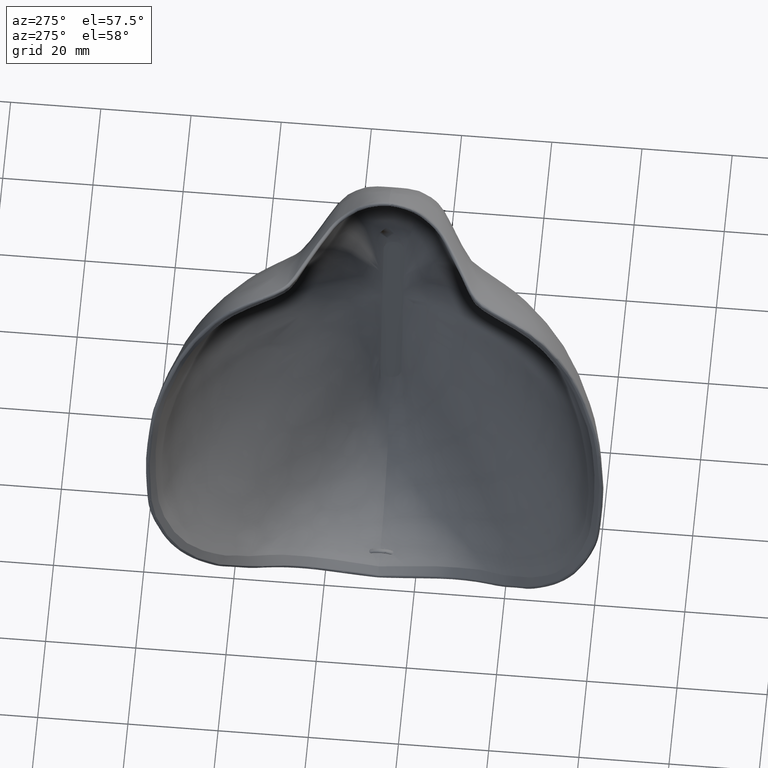
[diagram: clean part render]
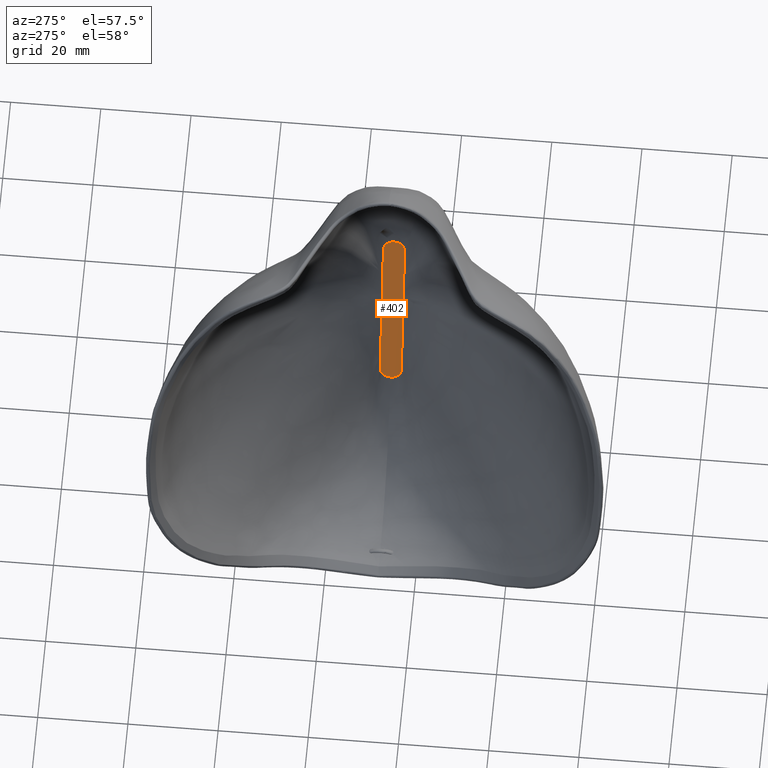
[diagram: same view with one face highlighted and labeled with its STEP entity id]
A machine part, auxiliary view. The second image highlights one B-rep face of the part: STEP entity #402.
In plain terms, the highlighted planar face has unit normal (-0.9751, -0, 0.2216).
Its self-contained STEP definition (entity closure, byte-faithful):
#15=PLANE('',#424);
#28=FACE_OUTER_BOUND('',#41,.T.);
#41=EDGE_LOOP('',(#368,#369,#370,#371,#372,#373,#374,#375));
#100=B_SPLINE_CURVE_WITH_KNOTS('',3,(#9557,#9558,#9559,#9560,#9561,#9562,
#9563,#9564,#9565,#9566,#9567,#9568,#9569,#9570,#9571,#9572,#9573,#9574,
#9575,#9576,#9577,#9578,#9579,#9580,#9581,#9582,#9583,#9584,#9585,#9586,
#9587,#9588,#9589,#9590,#9591,#9592,#9593,#9594,#9595,#9596,#9597,#9598,
#9599,#9600,#9601,#9602,#9603,#9604,#9605,#9606,#9607,#9608,#9609,#9610,
#9611,#9612,#9613,#9614,#9615,#9616,#9617,#9618,#9619,#9620,#9621,#9622,
#9623,#9624,#9625,#9626,#9627,#9628,#9629,#9630,#9631,#9632,#9633,#9634,
#9635,#9636,#9637,#9638,#9639,#9640,#9641,#9642,#9643,#9644),
 .UNSPECIFIED.,.F.,.F.,(4,1,2,2,1,2,2,1,2,2,1,2,2,1,2,2,1,2,2,1,2,2,1,2,
2,1,2,2,1,2,2,1,2,2,1,2,2,1,2,2,1,2,2,1,2,1,2,2,1,2,2,1,4),(0.458742509512089,
0.471877519518683,0.485012529525277,0.485031526688174,0.503366995752867,
0.52170246481756,0.521722756366477,0.539324397167111,0.556926037967744,
0.55694662484949,0.573969844017648,0.590993063185806,0.591013251258558,
0.607577295054026,0.624141338849494,0.624160634709426,0.640360561960478,
0.65656048921153,0.656578538271618,0.672492762370518,0.688406986469418,
0.688423534539054,0.704118835948573,0.719814137358092,0.719829006133149,
0.735364036005774,0.750899065878399,0.750912137151821,0.766339996297149,
0.781767855442476,0.78177906111766,0.797149310422934,0.812519559728209,
0.812528875974257,0.827889211364928,0.843249546755599,0.843256991395491,
0.858654750812748,0.874052510230006,0.874058142954774,0.889541782114127,
0.90502542127348,0.905029346670851,0.915107968380231,0.925186590089612,
0.930728636574602,0.936270683059591,0.936273056833329,0.952086422093972,
0.967899787354615,0.96790082658598,0.98395041329299,1.),.UNSPECIFIED.);
#101=B_SPLINE_CURVE_WITH_KNOTS('',3,(#9646,#9647,#9648,#9649,#9650,#9651,
#9652,#9653,#9654,#9655,#9656,#9657,#9658,#9659,#9660,#9661,#9662,#9663,
#9664),.UNSPECIFIED.,.F.,.F.,(4,2,2,1,2,2,1,2,2,1,4),(0.368251466088857,
0.368617844600831,0.368625631895368,0.388104295090559,0.407582958285751,
0.407594852329039,0.427071462149855,0.446548071970671,0.44656407276271,
0.452653291137399,0.45874250771956),.UNSPECIFIED.);
#102=B_SPLINE_CURVE_WITH_KNOTS('',3,(#9666,#9667,#9668,#9669,#9670,#9671,
#9672,#9673,#9674,#9675,#9676,#9677,#9678,#9679,#9680,#9681,#9682,#9683,
#9684,#9685,#9686,#9687,#9688,#9689,#9690,#9691,#9692,#9693,#9694,#9695,
#9696,#9697,#9698,#9699,#9700,#9701),.UNSPECIFIED.,.F.,.F.,(4,2,1,2,2,1,
2,2,1,1,2,2,1,2,2,1,2,1,2,2,1,4),(0.123465851294197,0.123466179491362,0.129138244392352,
0.134810309293342,0.134827162491313,0.154303346109163,0.173779529727013,
0.173792276176233,0.193270513168458,0.203009631664571,0.212748750160684,
0.212757389861152,0.232237680227754,0.251717970594355,0.251722503546072,
0.271205060388532,0.290687617230992,0.310170174073452,0.329652730915912,
0.329656411461697,0.349137128031264,0.368251466088857),.UNSPECIFIED.);
#103=B_SPLINE_CURVE_WITH_KNOTS('',3,(#9703,#9704,#9705,#9706,#9707,#9708,
#9709,#9710,#9711,#9712,#9713,#9714,#9715,#9716,#9717,#9718,#9719,#9720,
#9721,#9722,#9723,#9724,#9725,#9726,#9727,#9728,#9729,#9730,#9731,#9732,
#9733),.UNSPECIFIED.,.F.,.F.,(4,2,1,2,1,2,1,2,1,2,2,1,2,2,1,2,2,1,4),(0.,
0.000186710534281933,0.0103503103886555,0.020513910243029,0.0295361814915254,
0.0385584527400218,0.0390500968644372,0.0395417409888525,0.0490060486519082,
0.0584703563149638,0.0584763884453637,0.0684683488505194,0.0784603092556752,
0.0784689709507474,0.0900080785932276,0.101547186235708,0.101559610950687,
0.112512895221024,0.123465851294197),.UNSPECIFIED.);
#109=B_SPLINE_CURVE_WITH_KNOTS('',3,(#13273,#13274,#13275,#13276,#13277,
#13278,#13279,#13280,#13281,#13282,#13283,#13284,#13285,#13286,#13287,#13288,
#13289,#13290,#13291,#13292,#13293,#13294,#13295,#13296,#13297,#13298,#13299,
#13300,#13301,#13302,#13303,#13304,#13305,#13306,#13307),.UNSPECIFIED.,
 .F.,.F.,(4,1,2,2,1,2,2,1,2,2,1,2,2,1,2,1,2,2,1,1,1,4),(0.876534167763948,
0.887487104793919,0.898440389087723,0.898452813711747,0.909991921393148,
0.92153102907455,0.921539690707356,0.931531651139613,0.94152361157187,0.941529643659051,
0.950993951340564,0.960458259022077,0.960462093524623,0.96095182039097,
0.961441547257316,0.970462892352147,0.979484237446977,0.979486089748762,
0.989649682034101,0.99981327431944,0.99990663715972,1.),.UNSPECIFIED.);
#110=B_SPLINE_CURVE_WITH_KNOTS('',3,(#13309,#13310,#13311,#13312,#13313,
#13314,#13315,#13316,#13317,#13318,#13319,#13320,#13321,#13322,#13323,#13324,
#13325,#13326,#13327,#13328,#13329,#13330,#13331,#13332,#13333,#13334,#13335,
#13336,#13337,#13338,#13339,#13340,#13341,#13342,#13343,#13344,#13345,#13346),
 .UNSPECIFIED.,.F.,.F.,(4,1,2,2,1,2,2,1,2,2,1,1,2,2,1,2,2,1,2,2,1,2,4),
(0.631748355288963,0.650862871969536,0.670343588515583,0.670347269114423,
0.689829825959891,0.709312382805358,0.709312808939252,0.728795152717773,
0.748277496496293,0.748282029362922,0.767762319775075,0.777502464981151,
0.787242610187227,0.787251249786592,0.806729486832377,0.826207723878162,
0.826220470210261,0.845696653889679,0.865172837569097,0.865189690633931,
0.870861755567023,0.876533820500115,0.876534167763948),.UNSPECIFIED.);
#111=B_SPLINE_CURVE_WITH_KNOTS('',3,(#13348,#13349,#13350,#13351,#13352,
#13353,#13354,#13355,#13356,#13357,#13358,#13359,#13360,#13361,#13362,#13363,
#13364,#13365,#13366),.UNSPECIFIED.,.F.,.F.,(4,1,2,2,1,2,2,1,2,2,4),(0.541257490498319,
0.547346708871446,0.553435927244573,0.553451928041619,0.572928537854931,
0.592405147668243,0.592417041732554,0.611895704912233,0.631374368091913,
0.631382155423489,0.631748355288963),.UNSPECIFIED.);
#112=B_SPLINE_CURVE_WITH_KNOTS('',3,(#13367,#13368,#13369,#13370,#13371,
#13372,#13373,#13374,#13375,#13376,#13377,#13378,#13379,#13380,#13381,#13382,
#13383,#13384,#13385,#13386,#13387,#13388,#13389,#13390,#13391,#13392,#13393,
#13394,#13395,#13396,#13397,#13398,#13399,#13400,#13401,#13402,#13403,#13404,
#13405,#13406,#13407,#13408,#13409,#13410,#13411,#13412,#13413,#13414,#13415,
#13416,#13417,#13418,#13419,#13420,#13421,#13422,#13423,#13424,#13425,#13426,
#13427,#13428,#13429,#13430,#13431,#13432,#13433,#13434,#13435,#13436,#13437,
#13438,#13439,#13440,#13441,#13442,#13443,#13444,#13445,#13446,#13447,#13448,
#13449,#13450,#13451,#13452,#13453,#13454),.UNSPECIFIED.,.F.,.F.,(4,1,2,
2,1,2,2,1,2,1,2,2,1,2,2,1,2,2,1,2,2,1,2,2,1,2,2,1,2,2,1,2,2,1,2,2,1,2,2,
1,2,2,1,2,2,1,2,2,1,2,2,1,4),(0.,0.0160495867075203,0.0320991734150406,
0.0321002126458041,0.0479135779075864,0.0637269431693687,0.0637293169409132,
0.0692713634263699,0.0748134099118266,0.084892031622913,0.0949706533339994,
0.0949745787268652,0.110458217889713,0.125941857052561,0.125947489770008,
0.141345249192275,0.156743008614542,0.156750453243976,0.172110788641278,
0.187471124038579,0.187480440270873,0.202850689584428,0.218220938897982,
0.218232144556112,0.233660003711321,0.24908786286653,0.249100934119747,
0.264635964003725,0.280170993887703,0.280185862639719,0.295881164061843,
0.311576465483966,0.31159301352823,0.327507237640659,0.343421461753088,
0.343439510786205,0.35963943805125,0.375839365316295,0.375858661148673,
0.392422704957964,0.408986748767256,0.409006936813266,0.426030155994207,
0.443053375175148,0.443073962032881,0.460675602844049,0.478277243655217,
0.478297535185516,0.496633004256786,0.514968473328055,0.514987470481529,
0.528122480489924,0.541257479669037),.UNSPECIFIED.);
#163=VERTEX_POINT('',#9545);
#164=VERTEX_POINT('',#9556);
#165=VERTEX_POINT('',#9645);
#166=VERTEX_POINT('',#9665);
#167=VERTEX_POINT('',#9702);
#171=VERTEX_POINT('',#13272);
#172=VERTEX_POINT('',#13308);
#173=VERTEX_POINT('',#13347);
#231=EDGE_CURVE('',#164,#163,#100,.T.);
#232=EDGE_CURVE('',#165,#164,#101,.T.);
#233=EDGE_CURVE('',#166,#165,#102,.T.);
#234=EDGE_CURVE('',#167,#166,#103,.T.);
#240=EDGE_CURVE('',#171,#167,#109,.T.);
#241=EDGE_CURVE('',#172,#171,#110,.T.);
#242=EDGE_CURVE('',#173,#172,#111,.T.);
#243=EDGE_CURVE('',#163,#173,#112,.T.);
#368=ORIENTED_EDGE('',*,*,#243,.T.);
#369=ORIENTED_EDGE('',*,*,#242,.T.);
#370=ORIENTED_EDGE('',*,*,#241,.T.);
#371=ORIENTED_EDGE('',*,*,#240,.T.);
#372=ORIENTED_EDGE('',*,*,#234,.T.);
#373=ORIENTED_EDGE('',*,*,#233,.T.);
#374=ORIENTED_EDGE('',*,*,#232,.T.);
#375=ORIENTED_EDGE('',*,*,#231,.T.);
#402=ADVANCED_FACE('',(#28),#15,.T.);
#424=AXIS2_PLACEMENT_3D('',#13455,#428,#429);
#428=DIRECTION('center_axis',(-0.975142567848066,-1.83267958722439E-15,
0.221578366206359));
#429=DIRECTION('ref_axis',(0.221578366206359,-1.15045214581121E-18,0.975142567848066));
#9545=CARTESIAN_POINT('',(52.9365773669472,-71.8607379792957,-153.933333137427));
#9556=CARTESIAN_POINT('',(58.5159556220366,-69.5278479792958,-129.379089274122));
#9557=CARTESIAN_POINT('Ctrl Pts',(58.5159556388925,-69.5278479970514,-129.379089313094));
#9558=CARTESIAN_POINT('Ctrl Pts',(58.4974091335272,-69.5278479931046,-129.460710466073));
#9559=CARTESIAN_POINT('Ctrl Pts',(58.4570526273754,-69.527847986563,-129.638315072237));
#9560=CARTESIAN_POINT('Ctrl Pts',(58.4104448272529,-69.527847979986,-129.843430952128));
#9561=CARTESIAN_POINT('Ctrl Pts',(58.3856111641603,-69.5278479776363,-129.952721219986));
#9562=CARTESIAN_POINT('Ctrl Pts',(58.3855752959903,-69.5278479776402,-129.952879071969));
#9563=CARTESIAN_POINT('Ctrl Pts',(58.3509175647374,-69.5278479753437,-130.105404007987));
#9564=CARTESIAN_POINT('Ctrl Pts',(58.2758522033821,-69.5278479702919,-130.435758563445));
#9565=CARTESIAN_POINT('Ctrl Pts',(58.1898934870431,-69.5278479625254,-130.8140535901));
#9566=CARTESIAN_POINT('Ctrl Pts',(58.1443279027814,-69.5278479597152,-131.014582812147));
#9567=CARTESIAN_POINT('Ctrl Pts',(58.1442775287767,-69.52784795972,-131.014804502753));
#9568=CARTESIAN_POINT('Ctrl Pts',(58.1005281748602,-69.527847956237,-131.207340686973));
#9569=CARTESIAN_POINT('Ctrl Pts',(58.0084567310326,-69.5278479489784,-131.612537173108));
#9570=CARTESIAN_POINT('Ctrl Pts',(57.907701743414,-69.5278479332059,-132.055948957031));
#9571=CARTESIAN_POINT('Ctrl Pts',(57.8552579618254,-69.527847928323,-132.286748375524));
#9572=CARTESIAN_POINT('Ctrl Pts',(57.8551966924936,-69.5278479283283,-132.287018015293));
#9573=CARTESIAN_POINT('Ctrl Pts',(57.8044697559772,-69.527847926523,-132.510261800903));
#9574=CARTESIAN_POINT('Ctrl Pts',(57.6993879698625,-69.5278479261599,-132.97271544574));
#9575=CARTESIAN_POINT('Ctrl Pts',(57.5874054157021,-69.5278479116568,-133.465538554859));
#9576=CARTESIAN_POINT('Ctrl Pts',(57.529770723899,-69.5278479078854,-133.719182619047));
#9577=CARTESIAN_POINT('Ctrl Pts',(57.5297024528655,-69.5278479078884,-133.719483072537));
#9578=CARTESIAN_POINT('Ctrl Pts',(57.4736168913449,-69.527847907908,-133.966309603164));
#9579=CARTESIAN_POINT('Ctrl Pts',(57.3586000158297,-69.5278479131267,-134.472486544438));
#9580=CARTESIAN_POINT('Ctrl Pts',(57.2381714172655,-69.5278479019145,-135.002479815529));
#9581=CARTESIAN_POINT('Ctrl Pts',(57.1766708560576,-69.5278478994196,-135.273137166033));
#9582=CARTESIAN_POINT('Ctrl Pts',(57.1765992942638,-69.527847899422,-135.273452101795));
#9583=CARTESIAN_POINT('Ctrl Pts',(57.1164463176899,-69.5278478989398,-135.538178890974));
#9584=CARTESIAN_POINT('Ctrl Pts',(56.9939600299515,-69.5278479025922,-136.077227914529));
#9585=CARTESIAN_POINT('Ctrl Pts',(56.8673440294344,-69.527847888465,-136.634451282349));
#9586=CARTESIAN_POINT('Ctrl Pts',(56.8030613724107,-69.5278478847388,-136.917352338375));
#9587=CARTESIAN_POINT('Ctrl Pts',(56.8029898308276,-69.5278478847444,-136.917667185196));
#9588=CARTESIAN_POINT('Ctrl Pts',(56.7398376278277,-69.5278478810193,-137.195593240199));
#9589=CARTESIAN_POINT('Ctrl Pts',(56.6119335004174,-69.5278478767922,-137.758485573429));
#9590=CARTESIAN_POINT('Ctrl Pts',(56.4810340850687,-69.5278478496357,-138.334559764855));
#9591=CARTESIAN_POINT('Ctrl Pts',(56.4148894390301,-69.5278478418076,-138.625655228273));
#9592=CARTESIAN_POINT('Ctrl Pts',(56.414820730685,-69.5278478418163,-138.625957606309));
#9593=CARTESIAN_POINT('Ctrl Pts',(56.3495837716951,-69.5278478372975,-138.913058467293));
#9594=CARTESIAN_POINT('Ctrl Pts',(56.2180292811725,-69.5278478341865,-139.492015713662));
#9595=CARTESIAN_POINT('Ctrl Pts',(56.0845091714562,-69.5278477992433,-140.079623359173));
#9596=CARTESIAN_POINT('Ctrl Pts',(56.0173117136677,-69.5278477894777,-140.375352159346));
#9597=CARTESIAN_POINT('Ctrl Pts',(56.0172481147811,-69.5278477894872,-140.375632051157));
#9598=CARTESIAN_POINT('Ctrl Pts',(55.9507354964797,-69.5278477845241,-140.668346999776));
#9599=CARTESIAN_POINT('Ctrl Pts',(55.8171052642606,-69.5278477827653,-141.25643948097));
#9600=CARTESIAN_POINT('Ctrl Pts',(55.6824667461458,-69.5278477400407,-141.848969300715));
#9601=CARTESIAN_POINT('Ctrl Pts',(55.6149526836229,-69.5278477266289,-142.146091501924));
#9602=CARTESIAN_POINT('Ctrl Pts',(55.6148959244937,-69.5278477266489,-142.146341292663));
#9603=CARTESIAN_POINT('Ctrl Pts',(55.5478469980021,-69.5278477049597,-142.441416492295));
#9604=CARTESIAN_POINT('Ctrl Pts',(55.4135905718922,-69.5278476604196,-143.032264788389));
#9605=CARTESIAN_POINT('Ctrl Pts',(55.2792367174025,-69.5278475523742,-143.623541950098));
#9606=CARTESIAN_POINT('Ctrl Pts',(55.2120983780568,-69.5278475147198,-143.919010667293));
#9607=CARTESIAN_POINT('Ctrl Pts',(55.212049649054,-69.5278475147671,-143.919225118289));
#9608=CARTESIAN_POINT('Ctrl Pts',(55.1451619617169,-69.5278474562576,-144.213590753768));
#9609=CARTESIAN_POINT('Ctrl Pts',(55.011657557452,-69.5278473268407,-144.801129532663));
#9610=CARTESIAN_POINT('Ctrl Pts',(54.8789419773124,-69.5278470675704,-145.385197020954));
#9611=CARTESIAN_POINT('Ctrl Pts',(54.8128517740054,-69.5278469778225,-145.676053078071));
#9612=CARTESIAN_POINT('Ctrl Pts',(54.8128117396016,-69.5278469779075,-145.676229264982));
#9613=CARTESIAN_POINT('Ctrl Pts',(54.74676453313,-69.5278468601907,-145.966896220344));
#9614=CARTESIAN_POINT('Ctrl Pts',(54.6153648139066,-69.5278466068423,-146.545172953515));
#9615=CARTESIAN_POINT('Ctrl Pts',(54.4856353263336,-69.5278460803104,-147.116099739061));
#9616=CARTESIAN_POINT('Ctrl Pts',(54.4212671248032,-69.5278458974841,-147.39937772558));
#9617=CARTESIAN_POINT('Ctrl Pts',(54.4212359428216,-69.5278458976266,-147.399514953761));
#9618=CARTESIAN_POINT('Ctrl Pts',(54.3567115427261,-69.5278456445018,-147.683480576695));
#9619=CARTESIAN_POINT('Ctrl Pts',(54.2287859079928,-69.5278450923615,-148.246469061721));
#9620=CARTESIAN_POINT('Ctrl Pts',(54.1034262073311,-69.527843968213,-148.798166508749));
#9621=CARTESIAN_POINT('Ctrl Pts',(54.0414760762114,-69.5278435705146,-149.070803369698));
#9622=CARTESIAN_POINT('Ctrl Pts',(54.0414534221688,-69.5278435707613,-149.070903067158));
#9623=CARTESIAN_POINT('Ctrl Pts',(53.9791584988548,-69.5278429668426,-149.345057547079));
#9624=CARTESIAN_POINT('Ctrl Pts',(53.8561358087622,-69.5278416252866,-149.886469708484));
#9625=CARTESIAN_POINT('Ctrl Pts',(53.7366089479932,-69.5278389873097,-150.412500166491));
#9626=CARTESIAN_POINT('Ctrl Pts',(53.6778171380947,-69.5278380892288,-150.671238333709));
#9627=CARTESIAN_POINT('Ctrl Pts',(53.6778022369148,-69.5278380895605,-150.671303911763));
#9628=CARTESIAN_POINT('Ctrl Pts',(53.6395284693501,-69.5278374142086,-150.839743179941));
#9629=CARTESIAN_POINT('Ctrl Pts',(53.5638469073048,-69.527835632769,-151.172810503878));
#9630=CARTESIAN_POINT('Ctrl Pts',(53.4899625132325,-69.527833355332,-151.497970273378));
#9631=CARTESIAN_POINT('Ctrl Pts',(53.4334510631217,-69.5278308859331,-151.7466732795));
#9632=CARTESIAN_POINT('Ctrl Pts',(53.3933515632236,-69.5383736394484,-151.923147272431));
#9633=CARTESIAN_POINT('Ctrl Pts',(53.353794508921,-69.5698509674992,-152.097235063558));
#9634=CARTESIAN_POINT('Ctrl Pts',(53.3342769330653,-69.5907280922375,-152.183130305806));
#9635=CARTESIAN_POINT('Ctrl Pts',(53.3342685767555,-69.5907370328638,-152.183167080594));
#9636=CARTESIAN_POINT('Ctrl Pts',(53.2785947400565,-69.6502945169038,-152.428184521059));
#9637=CARTESIAN_POINT('Ctrl Pts',(53.1717098084537,-69.8537058804545,-152.898579244888));
#9638=CARTESIAN_POINT('Ctrl Pts',(53.0853124258043,-70.203025712548,-153.278819773744));
#9639=CARTESIAN_POINT('Ctrl Pts',(53.0496080972545,-70.404773218882,-153.435954141947));
#9640=CARTESIAN_POINT('Ctrl Pts',(53.0496057507946,-70.4047864770872,-153.43596446867));
#9641=CARTESIAN_POINT('Ctrl Pts',(53.0133655972171,-70.6095411562336,-153.59544528182));
#9642=CARTESIAN_POINT('Ctrl Pts',(52.9563614576815,-71.0746966326036,-153.846290061088));
#9643=CARTESIAN_POINT('Ctrl Pts',(52.9365773669472,-71.5986921286141,-153.933333137427));
#9644=CARTESIAN_POINT('Ctrl Pts',(52.9365773669472,-71.8607379792957,-153.933333137427));
#9645=CARTESIAN_POINT('',(58.8992729448451,-69.5278479792958,-127.692150946777));
#9646=CARTESIAN_POINT('Ctrl Pts',(58.8992729449211,-69.5278479525763,-127.692150946794));
#9647=CARTESIAN_POINT('Ctrl Pts',(58.8987556227923,-69.5278479534048,-127.694427629994));
#9648=CARTESIAN_POINT('Ctrl Pts',(58.8982383006604,-69.5278479542297,-127.696704313187));
#9649=CARTESIAN_POINT('Ctrl Pts',(58.8977099829575,-69.5278479550683,-127.699029386773));
#9650=CARTESIAN_POINT('Ctrl Pts',(58.8976989873647,-69.5278479550533,-127.699077777123));
#9651=CARTESIAN_POINT('Ctrl Pts',(58.8701843233863,-69.5278479668818,-127.82016690438));
#9652=CARTESIAN_POINT('Ctrl Pts',(58.8151769812645,-69.5278479863182,-128.062248363998));
#9653=CARTESIAN_POINT('Ctrl Pts',(58.7601696477279,-69.5278480118786,-128.304329847457));
#9654=CARTESIAN_POINT('Ctrl Pts',(58.7326491825832,-69.5278480197701,-128.425444490008));
#9655=CARTESIAN_POINT('Ctrl Pts',(58.7326323883127,-69.5278480197678,-128.425518399781));
#9656=CARTESIAN_POINT('Ctrl Pts',(58.7051148143106,-69.527848017477,-128.546620265305));
#9657=CARTESIAN_POINT('Ctrl Pts',(58.6501132482974,-69.5278480059124,-128.788676161509));
#9658=CARTESIAN_POINT('Ctrl Pts',(58.5951116919653,-69.5278480044083,-129.030732080577));
#9659=CARTESIAN_POINT('Ctrl Pts',(58.5675883201605,-69.5278480027853,-129.151859467897));
#9660=CARTESIAN_POINT('Ctrl Pts',(58.5675657272053,-69.5278480027874,-129.151958897078));
#9661=CARTESIAN_POINT('Ctrl Pts',(58.5589452185781,-69.5278480020999,-129.189896824556));
#9662=CARTESIAN_POINT('Ctrl Pts',(58.5417493888775,-69.5278479996927,-129.265573808014));
#9663=CARTESIAN_POINT('Ctrl Pts',(58.5245535606063,-69.5278479988811,-129.341250794749));
#9664=CARTESIAN_POINT('Ctrl Pts',(58.5159556464856,-69.5278479970514,-129.379089279678));
#9665=CARTESIAN_POINT('',(59.9361760303931,-69.5278479792958,-123.128851944431));
#9666=CARTESIAN_POINT('Ctrl Pts',(59.9361760708753,-69.5278380877517,-123.128851953584));
#9667=CARTESIAN_POINT('Ctrl Pts',(59.9361756074398,-69.527838087783,-123.128853993112));
#9668=CARTESIAN_POINT('Ctrl Pts',(59.9361751440186,-69.5278380878143,-123.128856032577));
#9669=CARTESIAN_POINT('Ctrl Pts',(59.9281658533949,-69.5278386291188,-123.164104029619));
#9670=CARTESIAN_POINT('Ctrl Pts',(59.9121481004512,-69.5278389633466,-123.234596420526));
#9671=CARTESIAN_POINT('Ctrl Pts',(59.8961303513488,-69.5278393347725,-123.305088784259));
#9672=CARTESIAN_POINT('Ctrl Pts',(59.8880976735163,-69.5278394691984,-123.340439724817));
#9673=CARTESIAN_POINT('Ctrl Pts',(59.888073876875,-69.5278394684359,-123.340544451358));
#9674=CARTESIAN_POINT('Ctrl Pts',(59.8605500096459,-69.5278403156001,-123.461673930081));
#9675=CARTESIAN_POINT('Ctrl Pts',(59.8055500065996,-69.5278430589244,-123.70372276948));
#9676=CARTESIAN_POINT('Ctrl Pts',(59.7505497547288,-69.5278440988358,-123.945772609387));
#9677=CARTESIAN_POINT('Ctrl Pts',(59.7230316417096,-69.5278446368425,-124.066876752528));
#9678=CARTESIAN_POINT('Ctrl Pts',(59.7230136438034,-69.5278446364511,-124.066955959426));
#9679=CARTESIAN_POINT('Ctrl Pts',(59.6954926203498,-69.5278449841256,-124.18807302963));
#9680=CARTESIAN_POINT('Ctrl Pts',(59.6542381653564,-69.527846061729,-124.369629504835));
#9681=CARTESIAN_POINT('Ctrl Pts',(59.5992320357908,-69.5278462407267,-124.611705525545));
#9682=CARTESIAN_POINT('Ctrl Pts',(59.5717290088214,-69.527846622685,-124.732743347116));
#9683=CARTESIAN_POINT('Ctrl Pts',(59.5579652757736,-69.5278466599321,-124.793316042631));
#9684=CARTESIAN_POINT('Ctrl Pts',(59.5579530766025,-69.5278466598812,-124.793369729919));
#9685=CARTESIAN_POINT('Ctrl Pts',(59.5304349004429,-69.5278467556439,-124.914474136957));
#9686=CARTESIAN_POINT('Ctrl Pts',(59.4754229655131,-69.5278470881291,-125.156575488492));
#9687=CARTESIAN_POINT('Ctrl Pts',(59.4204109345174,-69.5278471112881,-125.398676849653));
#9688=CARTESIAN_POINT('Ctrl Pts',(59.3928985418136,-69.5278471518539,-125.519755745445));
#9689=CARTESIAN_POINT('Ctrl Pts',(59.3928921413311,-69.5278471518377,-125.519783913296));
#9690=CARTESIAN_POINT('Ctrl Pts',(59.3653765875836,-69.5278472144649,-125.640877001529));
#9691=CARTESIAN_POINT('Ctrl Pts',(59.3103583294806,-69.5278474367902,-125.883006900867));
#9692=CARTESIAN_POINT('Ctrl Pts',(59.2553399757997,-69.5278474548036,-126.125136697816));
#9693=CARTESIAN_POINT('Ctrl Pts',(59.200321646559,-69.5278475506914,-126.367266492342));
#9694=CARTESIAN_POINT('Ctrl Pts',(59.1453033206045,-69.5278476174433,-126.609396330719));
#9695=CARTESIAN_POINT('Ctrl Pts',(59.0902849186875,-69.5278475797501,-126.851526022985));
#9696=CARTESIAN_POINT('Ctrl Pts',(59.0627705395732,-69.5278475801686,-126.972613783328));
#9697=CARTESIAN_POINT('Ctrl Pts',(59.0627653426755,-69.5278475801617,-126.972636654291));
#9698=CARTESIAN_POINT('Ctrl Pts',(59.0352536097305,-69.5278476334164,-127.093713085641));
#9699=CARTESIAN_POINT('Ctrl Pts',(58.980757908344,-69.5278478018689,-127.333543621399));
#9700=CARTESIAN_POINT('Ctrl Pts',(58.9262621643516,-69.5278479093513,-127.573374078304));
#9701=CARTESIAN_POINT('Ctrl Pts',(58.8992729449211,-69.5278479525763,-127.692150946794));
#9702=CARTESIAN_POINT('',(62.241100552252,-71.8607379792957,-112.985126925499));
#9703=CARTESIAN_POINT('Ctrl Pts',(62.241100552252,-71.8607379792957,-112.985126925499));
#9704=CARTESIAN_POINT('Ctrl Pts',(62.241100552252,-71.854823151472,-112.985126925499));
#9705=CARTESIAN_POINT('Ctrl Pts',(62.2410955076991,-71.8489082363107,-112.985149125807));
#9706=CARTESIAN_POINT('Ctrl Pts',(62.2405479757012,-71.5210363868008,-112.98755877556));
#9707=CARTESIAN_POINT('Ctrl Pts',(62.2094266040487,-70.8783848447403,-113.124520650265));
#9708=CARTESIAN_POINT('Ctrl Pts',(62.1237768401928,-70.3461099360954,-113.501456105247));
#9709=CARTESIAN_POINT('Ctrl Pts',(62.0238853386235,-69.9385219246193,-113.941067950007));
#9710=CARTESIAN_POINT('Ctrl Pts',(61.914134737461,-69.6342083443217,-114.424068582954));
#9711=CARTESIAN_POINT('Ctrl Pts',(61.7875025024638,-69.5277610189325,-114.981363504724));
#9712=CARTESIAN_POINT('Ctrl Pts',(61.7207216558133,-69.527776642367,-115.275258856031));
#9713=CARTESIAN_POINT('Ctrl Pts',(61.7137876073522,-69.5277763312626,-115.30577485783));
#9714=CARTESIAN_POINT('Ctrl Pts',(61.7067908392356,-69.5277764603741,-115.336566881767));
#9715=CARTESIAN_POINT('Ctrl Pts',(61.6356359539245,-69.5277806474709,-115.649711918844));
#9716=CARTESIAN_POINT('Ctrl Pts',(61.4889341428185,-69.5277920586006,-116.29533089583));
#9717=CARTESIAN_POINT('Ctrl Pts',(61.3273042782811,-69.5277993701319,-117.006646670804));
#9718=CARTESIAN_POINT('Ctrl Pts',(61.2446828941741,-69.5278024182513,-117.370254535318));
#9719=CARTESIAN_POINT('Ctrl Pts',(61.2446302671867,-69.5278024158624,-117.370486141019));
#9720=CARTESIAN_POINT('Ctrl Pts',(61.1574030747943,-69.5278050583093,-117.754363629994));
#9721=CARTESIAN_POINT('Ctrl Pts',(60.9791475941051,-69.5278126090371,-118.538846791249));
#9722=CARTESIAN_POINT('Ctrl Pts',(60.8023895181171,-69.5278172655903,-119.316740087444));
#9723=CARTESIAN_POINT('Ctrl Pts',(60.7166383906543,-69.5278192433851,-119.694121577036));
#9724=CARTESIAN_POINT('Ctrl Pts',(60.7165641217572,-69.5278192412277,-119.694448426477));
#9725=CARTESIAN_POINT('Ctrl Pts',(60.6175522297707,-69.5278212160243,-120.130189104611));
#9726=CARTESIAN_POINT('Ctrl Pts',(60.4268902808413,-69.5278269186303,-120.969271789266));
#9727=CARTESIAN_POINT('Ctrl Pts',(60.2649947187926,-69.5278303064379,-121.681756758523));
#9728=CARTESIAN_POINT('Ctrl Pts',(60.1947481636217,-69.5278317453066,-121.99090428819));
#9729=CARTESIAN_POINT('Ctrl Pts',(60.1946726191507,-69.5278317435069,-121.991236751322));
#9730=CARTESIAN_POINT('Ctrl Pts',(60.1280105429512,-69.5278327307384,-122.284609340766));
#9731=CARTESIAN_POINT('Ctrl Pts',(60.0142669359186,-69.5278356299754,-122.785182592618));
#9732=CARTESIAN_POINT('Ctrl Pts',(59.9516423464634,-69.5278370425546,-123.06078659526));
#9733=CARTESIAN_POINT('Ctrl Pts',(59.9361760708753,-69.5278380877517,-123.128851953584));
#13272=CARTESIAN_POINT('',(59.9361760303931,-74.1936279792958,-123.128851944431));
#13273=CARTESIAN_POINT('Ctrl Pts',(59.9361761423711,-74.1936374179239,-123.128851969797));
#13274=CARTESIAN_POINT('Ctrl Pts',(59.9516424509313,-74.1936384491777,-123.060786550353));
#13275=CARTESIAN_POINT('Ctrl Pts',(60.0142670384112,-74.1936398440246,-122.78518267773));
#13276=CARTESIAN_POINT('Ctrl Pts',(60.1280105534169,-74.193642695243,-122.284610028019));
#13277=CARTESIAN_POINT('Ctrl Pts',(60.1946726318766,-74.1936436648096,-121.991237497944));
#13278=CARTESIAN_POINT('Ctrl Pts',(60.1947481757901,-74.1936436630542,-121.990905037139));
#13279=CARTESIAN_POINT('Ctrl Pts',(60.2649947340059,-74.193645059581,-121.681757594756));
#13280=CARTESIAN_POINT('Ctrl Pts',(60.4268903064048,-74.1936483358279,-120.969272823712));
#13281=CARTESIAN_POINT('Ctrl Pts',(60.6175522638442,-74.1936538893202,-120.130190476777));
#13282=CARTESIAN_POINT('Ctrl Pts',(60.7165641580682,-74.193655809757,-119.694449916453));
#13283=CARTESIAN_POINT('Ctrl Pts',(60.716638426432,-74.1936558076626,-119.694123069238));
#13284=CARTESIAN_POINT('Ctrl Pts',(60.8023895506404,-74.1936577250362,-119.316741691109));
#13285=CARTESIAN_POINT('Ctrl Pts',(60.9791476191457,-74.1936622265436,-118.538848644723));
#13286=CARTESIAN_POINT('Ctrl Pts',(61.1574030873675,-74.1936695777683,-117.754365915722));
#13287=CARTESIAN_POINT('Ctrl Pts',(61.2446302762652,-74.1936721485171,-117.370488581616));
#13288=CARTESIAN_POINT('Ctrl Pts',(61.2446829028743,-74.1936721461902,-117.370256977423));
#13289=CARTESIAN_POINT('Ctrl Pts',(61.3273042927568,-74.1936751181083,-117.006649319312));
#13290=CARTESIAN_POINT('Ctrl Pts',(61.4889341973512,-74.193682124197,-116.29533395229));
#13291=CARTESIAN_POINT('Ctrl Pts',(61.6356359909938,-74.1936934692865,-115.64971589559));
#13292=CARTESIAN_POINT('Ctrl Pts',(61.7033045876394,-74.1936969702181,-115.351913913193));
#13293=CARTESIAN_POINT('Ctrl Pts',(61.7033319921604,-74.1936969691537,-115.351793308768));
#13294=CARTESIAN_POINT('Ctrl Pts',(61.7068592451948,-74.1936969895514,-115.33627024912));
#13295=CARTESIAN_POINT('Ctrl Pts',(61.7138283489263,-74.1936972314653,-115.305599979821));
#13296=CARTESIAN_POINT('Ctrl Pts',(61.7207352416683,-74.1936968539696,-115.275203480127));
#13297=CARTESIAN_POINT('Ctrl Pts',(61.7874960050305,-74.1937134796059,-114.981396964184));
#13298=CARTESIAN_POINT('Ctrl Pts',(61.9141148933159,-74.0872859391749,-114.42416171928));
#13299=CARTESIAN_POINT('Ctrl Pts',(62.0238574950025,-73.7830425521188,-113.941197735213));
#13300=CARTESIAN_POINT('Ctrl Pts',(62.070839668667,-73.5913528155535,-113.73443457258));
#13301=CARTESIAN_POINT('Ctrl Pts',(62.0708493138285,-73.5913134607458,-113.734392125341));
#13302=CARTESIAN_POINT('Ctrl Pts',(62.1237780662921,-73.3753584738663,-113.501457353565));
#13303=CARTESIAN_POINT('Ctrl Pts',(62.2094261126741,-72.8430876587633,-113.12452640944));
#13304=CARTESIAN_POINT('Ctrl Pts',(62.2406880492695,-72.1974910011722,-112.98694287418));
#13305=CARTESIAN_POINT('Ctrl Pts',(62.2410980045722,-71.8696109944328,-112.985138130686));
#13306=CARTESIAN_POINT('Ctrl Pts',(62.241100552252,-71.8636956331179,-112.985126925499));
#13307=CARTESIAN_POINT('Ctrl Pts',(62.241100552252,-71.8607379792957,-112.985126925499));
#13308=CARTESIAN_POINT('',(58.8992729447948,-74.1936279792958,-127.692150946998));
#13309=CARTESIAN_POINT('Ctrl Pts',(58.8992708532566,-74.193626327706,-127.692151428521));
#13310=CARTESIAN_POINT('Ctrl Pts',(58.9262601127706,-74.1936260242953,-127.573372998008));
#13311=CARTESIAN_POINT('Ctrl Pts',(58.9807556793169,-74.1936253888219,-127.333540515999));
#13312=CARTESIAN_POINT('Ctrl Pts',(59.0352505624869,-74.1936239100708,-127.093706588939));
#13313=CARTESIAN_POINT('Ctrl Pts',(59.0627619045459,-74.1936233782869,-126.97262932402));
#13314=CARTESIAN_POINT('Ctrl Pts',(59.0627671016594,-74.1936233784661,-126.972606453027));
#13315=CARTESIAN_POINT('Ctrl Pts',(59.0902807681208,-74.1936225073726,-126.851517171139));
#13316=CARTESIAN_POINT('Ctrl Pts',(59.1452977463842,-74.1936208143798,-126.609384433102));
#13317=CARTESIAN_POINT('Ctrl Pts',(59.2003125558677,-74.193616439022,-126.367247101619));
#13318=CARTESIAN_POINT('Ctrl Pts',(59.2278214013616,-74.1936152939249,-126.246177569063));
#13319=CARTESIAN_POINT('Ctrl Pts',(59.2278220030579,-74.1936152939236,-126.246174921059));
#13320=CARTESIAN_POINT('Ctrl Pts',(59.2553324407327,-74.1936165311881,-126.125110756919));
#13321=CARTESIAN_POINT('Ctrl Pts',(59.3103537979369,-74.1936211167275,-125.882991316674));
#13322=CARTESIAN_POINT('Ctrl Pts',(59.3653730302673,-74.1936231334609,-125.640867424161));
#13323=CARTESIAN_POINT('Ctrl Pts',(59.3928890391984,-74.1936241079956,-125.519777274546));
#13324=CARTESIAN_POINT('Ctrl Pts',(59.3928954393852,-74.1936241077558,-125.51974910685));
#13325=CARTESIAN_POINT('Ctrl Pts',(59.4204081928923,-74.1936246577611,-125.398670977394));
#13326=CARTESIAN_POINT('Ctrl Pts',(59.4616682705717,-74.1936263350742,-125.217097343632));
#13327=CARTESIAN_POINT('Ctrl Pts',(59.5166804069933,-74.1936267209754,-124.974996203615));
#13328=CARTESIAN_POINT('Ctrl Pts',(59.544186777266,-74.1936274561515,-124.853946416262));
#13329=CARTESIAN_POINT('Ctrl Pts',(59.5579520021039,-74.1936275452418,-124.793367429501));
#13330=CARTESIAN_POINT('Ctrl Pts',(59.5579642010773,-74.19362754508,-124.793313742699));
#13331=CARTESIAN_POINT('Ctrl Pts',(59.585479577053,-74.1936279073331,-124.672222397317));
#13332=CARTESIAN_POINT('Ctrl Pts',(59.6404860769835,-74.1936288436572,-124.430147415796));
#13333=CARTESIAN_POINT('Ctrl Pts',(59.6954922639996,-74.1936300517955,-124.188072326369));
#13334=CARTESIAN_POINT('Ctrl Pts',(59.723013373981,-74.1936305083407,-124.06695547157));
#13335=CARTESIAN_POINT('Ctrl Pts',(59.7230313716643,-74.1936305078699,-124.066876265252));
#13336=CARTESIAN_POINT('Ctrl Pts',(59.7505495281825,-74.193631117041,-123.945772240654));
#13337=CARTESIAN_POINT('Ctrl Pts',(59.805549890152,-74.1936323663929,-123.703722677283));
#13338=CARTESIAN_POINT('Ctrl Pts',(59.8605499639795,-74.193635169625,-123.461674114279));
#13339=CARTESIAN_POINT('Ctrl Pts',(59.8880738590867,-74.1936360502758,-123.340544734703));
#13340=CARTESIAN_POINT('Ctrl Pts',(59.8880976555202,-74.1936360494928,-123.340440008911));
#13341=CARTESIAN_POINT('Ctrl Pts',(59.8961303349042,-74.1936361843749,-123.305089079166));
#13342=CARTESIAN_POINT('Ctrl Pts',(59.9121480871476,-74.1936365543293,-123.234596739873));
#13343=CARTESIAN_POINT('Ctrl Pts',(59.9281658416432,-74.1936368837719,-123.164104368694));
#13344=CARTESIAN_POINT('Ctrl Pts',(59.9361751616657,-74.1936374178585,-123.128856285767));
#13345=CARTESIAN_POINT('Ctrl Pts',(59.9361756520104,-74.1936374178912,-123.128854127817));
#13346=CARTESIAN_POINT('Ctrl Pts',(59.9361761423711,-74.1936374179239,-123.128851969797));
#13347=CARTESIAN_POINT('',(58.5159556220367,-74.1936279792958,-129.379089274122));
#13348=CARTESIAN_POINT('Ctrl Pts',(58.5159555093098,-74.1936278405607,-129.379089036204));
#13349=CARTESIAN_POINT('Ctrl Pts',(58.5245534192556,-74.1936278342797,-129.341250525724));
#13350=CARTESIAN_POINT('Ctrl Pts',(58.5417492470991,-74.1936278315156,-129.265573521508));
#13351=CARTESIAN_POINT('Ctrl Pts',(58.5589450691211,-74.1936278215807,-129.189896505015));
#13352=CARTESIAN_POINT('Ctrl Pts',(58.5675655740127,-74.1936278177457,-129.1519585695));
#13353=CARTESIAN_POINT('Ctrl Pts',(58.5675881669994,-74.1936278177731,-129.15185914034));
#13354=CARTESIAN_POINT('Ctrl Pts',(58.5951115065628,-74.1936277804455,-129.030731684411));
#13355=CARTESIAN_POINT('Ctrl Pts',(58.6501129928528,-74.19362769732,-128.788675616545));
#13356=CARTESIAN_POINT('Ctrl Pts',(58.7051144047109,-74.1936275227086,-128.546619392098));
#13357=CARTESIAN_POINT('Ctrl Pts',(58.7326319233941,-74.1936274580116,-128.425517408588));
#13358=CARTESIAN_POINT('Ctrl Pts',(58.7326487177541,-74.1936274580869,-128.425443498812));
#13359=CARTESIAN_POINT('Ctrl Pts',(58.7601690931087,-74.1936273403829,-128.304328664535));
#13360=CARTESIAN_POINT('Ctrl Pts',(58.8151762422727,-74.1936270886831,-128.062246787642));
#13361=CARTESIAN_POINT('Ctrl Pts',(58.8701831510718,-74.1936265408377,-127.820164403601));
#13362=CARTESIAN_POINT('Ctrl Pts',(58.8976976645157,-74.1936263451205,-127.699074954927));
#13363=CARTESIAN_POINT('Ctrl Pts',(58.8977086602599,-74.1936263452568,-127.699026564559));
#13364=CARTESIAN_POINT('Ctrl Pts',(58.8982367216173,-74.1936263393275,-127.696702592009));
#13365=CARTESIAN_POINT('Ctrl Pts',(58.8987537874386,-74.1936263335188,-127.694427010268));
#13366=CARTESIAN_POINT('Ctrl Pts',(58.8992708532566,-74.193626327706,-127.692151428521));
#13367=CARTESIAN_POINT('Ctrl Pts',(52.9365773669472,-71.8607379792957,-153.933333137427));
#13368=CARTESIAN_POINT('Ctrl Pts',(52.9365773669472,-72.1227838299807,-153.933333137427));
#13369=CARTESIAN_POINT('Ctrl Pts',(52.9563586300347,-72.6467846352195,-153.846282251523));
#13370=CARTESIAN_POINT('Ctrl Pts',(53.0133600380956,-73.1119453068374,-153.595429458241));
#13371=CARTESIAN_POINT('Ctrl Pts',(53.0495992670968,-73.3167017474151,-153.435945978701));
#13372=CARTESIAN_POINT('Ctrl Pts',(53.0496016135771,-73.3167150055663,-153.435935652045));
#13373=CARTESIAN_POINT('Ctrl Pts',(53.0853063644254,-73.5184618180462,-153.278802528491));
#13374=CARTESIAN_POINT('Ctrl Pts',(53.1717055142666,-73.8677786142192,-152.898567207284));
#13375=CARTESIAN_POINT('Ctrl Pts',(53.2785912197118,-74.0711888269803,-152.428174650292));
#13376=CARTESIAN_POINT('Ctrl Pts',(53.3342654204471,-74.1307457173423,-152.183158253326));
#13377=CARTESIAN_POINT('Ctrl Pts',(53.3342737766983,-74.1307546580549,-152.183121478426));
#13378=CARTESIAN_POINT('Ctrl Pts',(53.3537914006482,-74.151631664283,-152.097226373744));
#13379=CARTESIAN_POINT('Ctrl Pts',(53.3933485864413,-74.1831086280069,-151.923138958143));
#13380=CARTESIAN_POINT('Ctrl Pts',(53.4334481196082,-74.1936512756111,-151.746665059894));
#13381=CARTESIAN_POINT('Ctrl Pts',(53.4899597527294,-74.1936482364376,-151.497962575509));
#13382=CARTESIAN_POINT('Ctrl Pts',(53.5638443646097,-74.1936453228254,-151.17280342618));
#13383=CARTESIAN_POINT('Ctrl Pts',(53.6395259617391,-74.1936432528858,-150.839736203302));
#13384=CARTESIAN_POINT('Ctrl Pts',(53.6777997656063,-74.1936424292745,-150.671297038545));
#13385=CARTESIAN_POINT('Ctrl Pts',(53.6778146667309,-74.1936424297157,-150.671231460459));
#13386=CARTESIAN_POINT('Ctrl Pts',(53.7366066434596,-74.193641120301,-150.412493762551));
#13387=CARTESIAN_POINT('Ctrl Pts',(53.8561340686967,-74.1936371883198,-149.886464891441));
#13388=CARTESIAN_POINT('Ctrl Pts',(53.9791569533763,-74.1936351889927,-149.345053275104));
#13389=CARTESIAN_POINT('Ctrl Pts',(54.041451986222,-74.1936342871149,-149.070899102548));
#13390=CARTESIAN_POINT('Ctrl Pts',(54.0414746401786,-74.1936342874845,-149.07079940506));
#13391=CARTESIAN_POINT('Ctrl Pts',(54.1034248908099,-74.1936336892884,-148.798162876623));
#13392=CARTESIAN_POINT('Ctrl Pts',(54.2287849570783,-74.1936320097976,-148.246466445707));
#13393=CARTESIAN_POINT('Ctrl Pts',(54.356710762976,-74.1936311391911,-147.683478434202));
#13394=CARTESIAN_POINT('Ctrl Pts',(54.4212352439774,-74.1936307506291,-147.399513035748));
#13395=CARTESIAN_POINT('Ctrl Pts',(54.4212664258678,-74.1936307508408,-147.39937580763));
#13396=CARTESIAN_POINT('Ctrl Pts',(54.4856346915469,-74.193630491822,-147.116097998228));
#13397=CARTESIAN_POINT('Ctrl Pts',(54.615364364567,-74.19362976257,-146.545171723918));
#13398=CARTESIAN_POINT('Ctrl Pts',(54.7467641805825,-74.1936293906292,-145.966895255886));
#13399=CARTESIAN_POINT('Ctrl Pts',(54.8128114293897,-74.1936292223283,-145.676228417244));
#13400=CARTESIAN_POINT('Ctrl Pts',(54.8128514637082,-74.1936292224478,-145.676052230521));
#13401=CARTESIAN_POINT('Ctrl Pts',(54.8789416886705,-74.1936290989189,-145.385196233828));
#13402=CARTESIAN_POINT('Ctrl Pts',(55.0116573307691,-74.1936287502199,-144.801128917293));
#13403=CARTESIAN_POINT('Ctrl Pts',(55.1451617514641,-74.193628555638,-144.213590185145));
#13404=CARTESIAN_POINT('Ctrl Pts',(55.2120494501404,-74.1936284720798,-143.919224581651));
#13405=CARTESIAN_POINT('Ctrl Pts',(55.2120981790534,-74.1936284721439,-143.919010130939));
#13406=CARTESIAN_POINT('Ctrl Pts',(55.2792365389181,-74.1936284252598,-143.623541468753));
#13407=CARTESIAN_POINT('Ctrl Pts',(55.4135904564289,-74.1936282979944,-143.032264474665));
#13408=CARTESIAN_POINT('Ctrl Pts',(55.547846920882,-74.1936282337269,-142.441416278635));
#13409=CARTESIAN_POINT('Ctrl Pts',(55.6148958640572,-74.1936282050092,-142.146341123326));
#13410=CARTESIAN_POINT('Ctrl Pts',(55.6149526230801,-74.1936282050355,-142.146091332925));
#13411=CARTESIAN_POINT('Ctrl Pts',(55.6824667014947,-74.1936281876656,-141.848969173338));
#13412=CARTESIAN_POINT('Ctrl Pts',(55.8171052611335,-74.1936281374508,-141.2564394614));
#13413=CARTESIAN_POINT('Ctrl Pts',(55.9507355353782,-74.1936281202365,-140.668347086617));
#13414=CARTESIAN_POINT('Ctrl Pts',(56.0172481679879,-74.1936281104449,-140.37563217508));
#13415=CARTESIAN_POINT('Ctrl Pts',(56.0173117667657,-74.1936281104589,-140.375352283676));
#13416=CARTESIAN_POINT('Ctrl Pts',(56.0845092259915,-74.1936280984458,-140.079623487916));
#13417=CARTESIAN_POINT('Ctrl Pts',(56.21802933264,-74.1936280618742,-139.492015835549));
#13418=CARTESIAN_POINT('Ctrl Pts',(56.3495838325289,-74.1936280431735,-138.913058611917));
#13419=CARTESIAN_POINT('Ctrl Pts',(56.4148207934238,-74.1936280348854,-138.625957756226));
#13420=CARTESIAN_POINT('Ctrl Pts',(56.414889501663,-74.1936280348943,-138.625655378652));
#13421=CARTESIAN_POINT('Ctrl Pts',(56.4810341465742,-74.1936280305856,-138.334559912875));
#13422=CARTESIAN_POINT('Ctrl Pts',(56.6119335551817,-74.1936280184171,-137.758485704451));
#13423=CARTESIAN_POINT('Ctrl Pts',(56.7398376884172,-74.1936280147889,-137.19559338435));
#13424=CARTESIAN_POINT('Ctrl Pts',(56.8029898920956,-74.1936280125195,-136.917667331299));
#13425=CARTESIAN_POINT('Ctrl Pts',(56.8030614335725,-74.1936280125237,-136.91735248495));
#13426=CARTESIAN_POINT('Ctrl Pts',(56.8673440889143,-74.1936280091984,-136.6344514251));
#13427=CARTESIAN_POINT('Ctrl Pts',(56.9939600815236,-74.1936279990339,-136.077228037243));
#13428=CARTESIAN_POINT('Ctrl Pts',(57.1164463735731,-74.1936279935251,-135.538179022808));
#13429=CARTESIAN_POINT('Ctrl Pts',(57.1765993503222,-74.1936279910481,-135.273452234226));
#13430=CARTESIAN_POINT('Ctrl Pts',(57.176670912015,-74.1936279910517,-135.273137298917));
#13431=CARTESIAN_POINT('Ctrl Pts',(57.2381714714025,-74.1936279890629,-135.002479944282));
#13432=CARTESIAN_POINT('Ctrl Pts',(57.3586000620378,-74.1936279838607,-134.472486653339));
#13433=CARTESIAN_POINT('Ctrl Pts',(57.4736169409376,-74.1936279793972,-133.966309718963));
#13434=CARTESIAN_POINT('Ctrl Pts',(57.5297025025639,-74.1936279780917,-133.719483188735));
#13435=CARTESIAN_POINT('Ctrl Pts',(57.5297707735071,-74.1936279780907,-133.719182735643));
#13436=CARTESIAN_POINT('Ctrl Pts',(57.5874054650234,-74.1936279807566,-133.465538670973));
#13437=CARTESIAN_POINT('Ctrl Pts',(57.6993880154447,-74.1936279882856,-132.972715552251));
#13438=CARTESIAN_POINT('Ctrl Pts',(57.8044698100939,-74.193627998283,-132.510261926541));
#13439=CARTESIAN_POINT('Ctrl Pts',(57.855196747856,-74.1936280012463,-132.287018144023));
#13440=CARTESIAN_POINT('Ctrl Pts',(57.8552580171198,-74.1936280012459,-132.286748504576));
#13441=CARTESIAN_POINT('Ctrl Pts',(57.9077017928945,-74.1936279986702,-132.055949073172));
#13442=CARTESIAN_POINT('Ctrl Pts',(58.0084567609928,-74.19362798922,-131.612537244386));
#13443=CARTESIAN_POINT('Ctrl Pts',(58.1005281945208,-74.1936279835494,-131.207340735264));
#13444=CARTESIAN_POINT('Ctrl Pts',(58.1442775430762,-74.1936279802993,-131.014804539272));
#13445=CARTESIAN_POINT('Ctrl Pts',(58.1443279170464,-74.1936279803091,-131.014582848896));
#13446=CARTESIAN_POINT('Ctrl Pts',(58.1898934912278,-74.1936279705116,-130.814053604726));
#13447=CARTESIAN_POINT('Ctrl Pts',(58.27585218155,-74.1936279454335,-130.435758519947));
#13448=CARTESIAN_POINT('Ctrl Pts',(58.3509175104091,-74.1936279102644,-130.105403893496));
#13449=CARTESIAN_POINT('Ctrl Pts',(58.3855752300207,-74.1936278981416,-129.952878932072));
#13450=CARTESIAN_POINT('Ctrl Pts',(58.385611098188,-74.1936278981561,-129.9527210802));
#13451=CARTESIAN_POINT('Ctrl Pts',(58.410444754264,-74.1936278920042,-129.843430797261));
#13452=CARTESIAN_POINT('Ctrl Pts',(58.4570525188579,-74.1936278788136,-129.638314966565));
#13453=CARTESIAN_POINT('Ctrl Pts',(58.4974089851303,-74.1936278541095,-129.460710366732));
#13454=CARTESIAN_POINT('Ctrl Pts',(58.5159554634373,-74.1936278405607,-129.379089238084));
#13455=CARTESIAN_POINT('Origin',(57.6071331273911,-71.8607423840158,-133.378719365813));